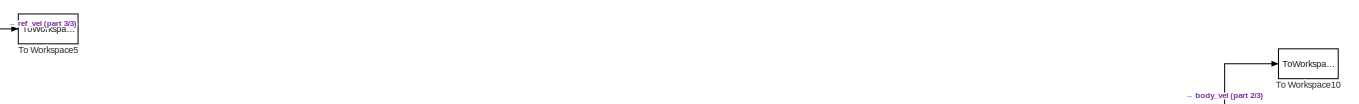
[diagram: root canvas - part 1/3, top center region]
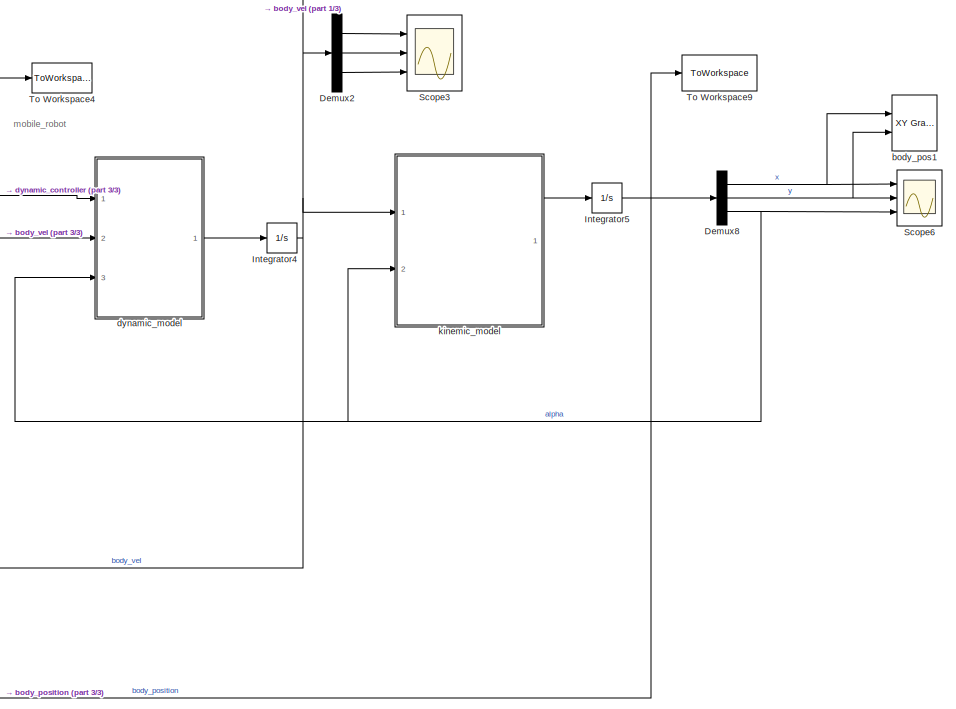
[diagram: root canvas - part 2/3, right side, full height]
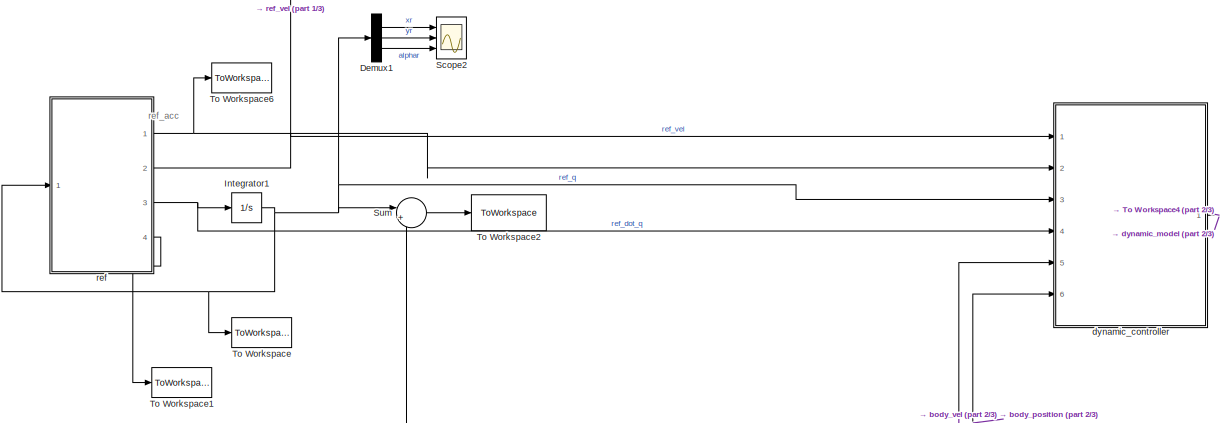
[diagram: root canvas - part 3/3, middle left region]
MODEL slx_5b17a9e69a39
KIND model
CONFIG AbsTol = auto
CONFIG EnableMultiTasking = off
CONFIG FixedStep = 0.001
CONFIG MaxStep = 0.05
CONFIG MinStep = auto
CONFIG RelTol = 1e-3
CONFIG SampleTimeConstraint = Unconstrained
CONFIG Solver = ode5
CONFIG SolverName = ode5
CONFIG StartTime = 0.0
CONFIG StopTime = 20
BLOCK [Demux] Demux1
  DisplayOption = bar
  Outputs = 3
  Ports = [1, 3]
BLOCK [Demux] Demux2
  DisplayOption = bar
  Outputs = 3
  Ports = [1, 3]
BLOCK [Demux] Demux8
  DisplayOption = bar
  Outputs = 3
  Ports = [1, 3]
BLOCK [Integrator] Integrator1
  InitialCondition = [0;0;pi/4]
  Ports = [1, 1]
BLOCK [Integrator] Integrator4
  IgnoreLimit = on
  InitialCondition = [0.1 0.1 0.1]
  Ports = [1, 1]
BLOCK [Integrator] Integrator5
  IgnoreLimit = on
  InitialCondition = [2 -2 pi/2]
  Ports = [1, 1]
BLOCK [Scope] Scope2
  NumInputPorts = 3
  Ports = [3]
  ScopeSpecificationString = Simulink.scopes.TimeScopeBlockCfg('CurrentConfiguration', extmgr.ConfigurationSet(extmgr.Configuration('Core','General UI',true),extmgr.Configuration('Core','Source UI',true),extmgr.Configuration('Sources','WiredSimulink',true,'DataLoggingVariableName','ScopeData3'),extmgr.Configuration('Visuals','Time Domain',true,'SerializedDisplays',{struct('MinYLimReal','-0.88388','MaxYLimReal','7.95495','YLab...<+2734ch>
BLOCK [Scope] Scope3
  NumInputPorts = 3
  Ports = [3]
  ScopeSpecificationString = Simulink.scopes.TimeScopeBlockCfg('CurrentConfiguration', extmgr.ConfigurationSet(extmgr.Configuration('Core','General UI',true),extmgr.Configuration('Core','Source UI',true),extmgr.Configuration('Sources','WiredSimulink',true,'DataLoggingVariableName','ScopeData1'),extmgr.Configuration('Visuals','Time Domain',true,'SerializedDisplays',{struct('MinYLimReal','0.10442','MaxYLimReal','7.84514','YLabe...<+2705ch>
BLOCK [Scope] Scope6
  NumInputPorts = 3
  Ports = [3]
  ScopeSpecificationString = Simulink.scopes.TimeScopeBlockCfg('CurrentConfiguration', extmgr.ConfigurationSet(extmgr.Configuration('Core','General UI',true),extmgr.Configuration('Core','Source UI',true),extmgr.Configuration('Sources','WiredSimulink',true,'DataLoggingVariableName','ScopeData2'),extmgr.Configuration('Visuals','Time Domain',true,'SerializedDisplays',{struct('MinYLimReal','0.10442','MaxYLimReal','7.84514','YLabe...<+2698ch>
BLOCK [Sum] Sum
  IconShape = round
  InputSameDT = off
  Inputs = |+-
  OutDataTypeStr = Inherit: Inherit via internal rule
  Ports = [2, 1]
  SaturateOnIntegerOverflow = off
BLOCK [ToWorkspace] To Workspace
  FixptAsFi = on
  MaxDataPoints = inf
  Ports = [1]
  SampleTime = -1
  Save2DSignal = 3-D array (concatenate along third dimension)
  VariableName = ref_q
BLOCK [ToWorkspace] To Workspace1
  FixptAsFi = on
  MaxDataPoints = inf
  Ports = [1]
  SampleTime = -1
  Save2DSignal = 3-D array (concatenate along third dimension)
  VariableName = ref_f
BLOCK [ToWorkspace] To Workspace10
  FixptAsFi = on
  MaxDataPoints = inf
  Ports = [1]
  SampleTime = -1
  Save2DSignal = 3-D array (concatenate along third dimension)
  VariableName = body_vel
BLOCK [ToWorkspace] To Workspace2
  FixptAsFi = on
  MaxDataPoints = inf
  Ports = [1]
  SampleTime = -1
  Save2DSignal = 3-D array (concatenate along third dimension)
  VariableName = e_pos
BLOCK [ToWorkspace] To Workspace4
  FixptAsFi = on
  MaxDataPoints = inf
  Ports = [1]
  SampleTime = -1
  Save2DSignal = 3-D array (concatenate along third dimension)
  VariableName = control_u
BLOCK [ToWorkspace] To Workspace5
  FixptAsFi = on
  MaxDataPoints = inf
  Ports = [1]
  SampleTime = -1
  Save2DSignal = 3-D array (concatenate along third dimension)
  VariableName = ref_vel
BLOCK [ToWorkspace] To Workspace6
  FixptAsFi = on
  MaxDataPoints = inf
  Ports = [1]
  SampleTime = -1
  Save2DSignal = 3-D array (concatenate along third dimension)
  VariableName = ref_acc
BLOCK [ToWorkspace] To Workspace9
  FixptAsFi = on
  MaxDataPoints = inf
  Ports = [1]
  SampleTime = -1
  Save2DSignal = 3-D array (concatenate along third dimension)
  VariableName = body_position
BLOCK [Reference] body_pos1  REF=simulink/Sinks/XY Graph
  Ports = [2]
  SourceBlock = simulink/Sinks/XY Graph
  SourceProductBaseCode = SL
  SourceProductName = Simulink
  SourceType = XY scope.
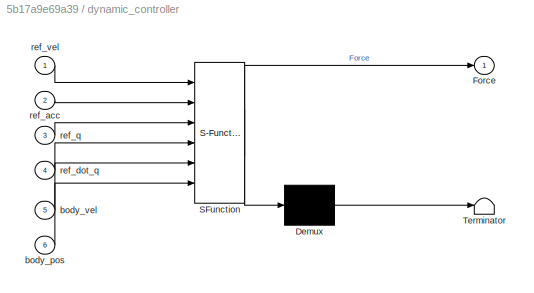
BLOCK [SubSystem] dynamic_controller
  ErrorFcn = Stateflow.Translate.translate
  PermitHierarchicalResolution = ExplicitOnly
  Ports = [6, 1]
  RequestExecContextInheritance = off
  SFBlockType = MATLAB Function
  TreatAsAtomicUnit = on
  Variant = off
BLOCK [Demux] dynamic_controller/ Demux 
  Outputs = 1
  Ports = [1, 1]
BLOCK [S-Function] dynamic_controller/ SFunction 
  EnableBusSupport = on
  FunctionName = sf_sfun
  PortCounts = [6 2]
  Ports = [6, 2]
  SFcnIsStateOwnerBlock = off
  SFunctionDeploymentMode = off
  Tag = Stateflow S-Function sim81 7
BLOCK [Terminator] dynamic_controller/ Terminator 
BLOCK [Outport] dynamic_controller/Force
  IconDisplay = Port number
BLOCK [Inport] dynamic_controller/body_pos
  IconDisplay = Port number
  Port = 6
BLOCK [Inport] dynamic_controller/body_vel
  IconDisplay = Port number
  Port = 5
BLOCK [Inport] dynamic_controller/ref_acc
  IconDisplay = Port number
  Port = 2
BLOCK [Inport] dynamic_controller/ref_dot_q
  IconDisplay = Port number
  Port = 4
BLOCK [Inport] dynamic_controller/ref_q
  IconDisplay = Port number
  Port = 3
BLOCK [Inport] dynamic_controller/ref_vel
  IconDisplay = Port number
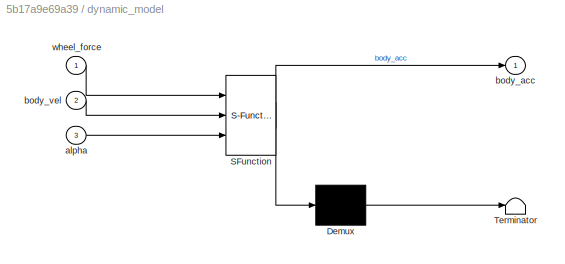
BLOCK [SubSystem] dynamic_model
  ErrorFcn = Stateflow.Translate.translate
  PermitHierarchicalResolution = ExplicitOnly
  Ports = [3, 1]
  RequestExecContextInheritance = off
  SFBlockType = MATLAB Function
  TreatAsAtomicUnit = on
  Variant = off
BLOCK [Demux] dynamic_model/ Demux 
  Outputs = 1
  Ports = [1, 1]
BLOCK [S-Function] dynamic_model/ SFunction 
  EnableBusSupport = on
  FunctionName = sf_sfun
  PortCounts = [3 2]
  Ports = [3, 2]
  SFcnIsStateOwnerBlock = off
  SFunctionDeploymentMode = off
  Tag = Stateflow S-Function sim81 6
BLOCK [Terminator] dynamic_model/ Terminator 
BLOCK [Inport] dynamic_model/alpha
  IconDisplay = Port number
  Port = 3
BLOCK [Outport] dynamic_model/body_acc
  IconDisplay = Port number
BLOCK [Inport] dynamic_model/body_vel
  IconDisplay = Port number
  Port = 2
BLOCK [Inport] dynamic_model/wheel_force
  IconDisplay = Port number
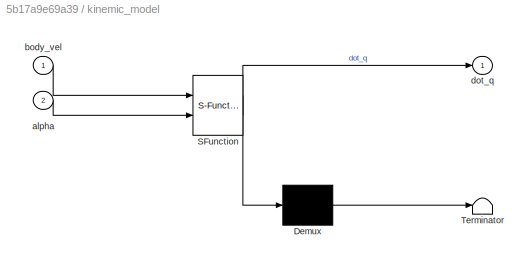
BLOCK [SubSystem] kinemic_model
  ErrorFcn = Stateflow.Translate.translate
  PermitHierarchicalResolution = ExplicitOnly
  Ports = [2, 1]
  RequestExecContextInheritance = off
  SFBlockType = MATLAB Function
  TreatAsAtomicUnit = on
  Variant = off
BLOCK [Demux] kinemic_model/ Demux 
  Outputs = 1
  Ports = [1, 1]
BLOCK [S-Function] kinemic_model/ SFunction 
  EnableBusSupport = on
  FunctionName = sf_sfun
  PortCounts = [2 2]
  Ports = [2, 2]
  SFcnIsStateOwnerBlock = off
  SFunctionDeploymentMode = off
  Tag = Stateflow S-Function sim81 8
BLOCK [Terminator] kinemic_model/ Terminator 
BLOCK [Inport] kinemic_model/alpha
  IconDisplay = Port number
  Port = 2
BLOCK [Inport] kinemic_model/body_vel
  IconDisplay = Port number
BLOCK [Outport] kinemic_model/dot_q
  IconDisplay = Port number
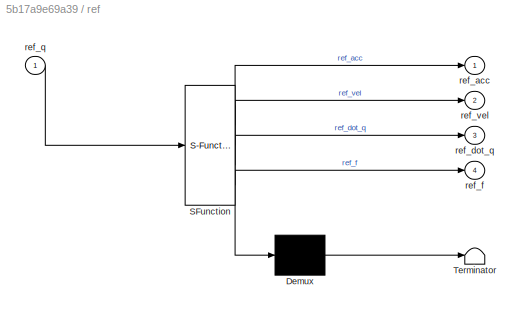
BLOCK [SubSystem] ref
  ErrorFcn = Stateflow.Translate.translate
  PermitHierarchicalResolution = ExplicitOnly
  Ports = [1, 4]
  RequestExecContextInheritance = off
  SFBlockType = MATLAB Function
  TreatAsAtomicUnit = on
  Variant = off
BLOCK [Demux] ref/ Demux 
  Outputs = 1
  Ports = [1, 1]
BLOCK [S-Function] ref/ SFunction 
  EnableBusSupport = on
  FunctionName = sf_sfun
  PortCounts = [1 5]
  Ports = [1, 5]
  SFcnIsStateOwnerBlock = off
  SFunctionDeploymentMode = off
  Tag = Stateflow S-Function sim81 4
BLOCK [Terminator] ref/ Terminator 
BLOCK [Outport] ref/ref_acc
  IconDisplay = Port number
BLOCK [Outport] ref/ref_dot_q
  IconDisplay = Port number
  Port = 3
BLOCK [Outport] ref/ref_f
  IconDisplay = Port number
  Port = 4
BLOCK [Inport] ref/ref_q
  IconDisplay = Port number
BLOCK [Outport] ref/ref_vel
  IconDisplay = Port number
  Port = 2
ANNOTATION (root): mobile_robot
ANNOTATION (root): ref_acc
LINE Demux1:1 -> Scope2:1
LINE Demux1:2 -> Scope2:2
LINE Demux1:3 -> Scope2:3
LINE Demux2:1 -> Scope3:1
LINE Demux2:2 -> Scope3:2
LINE Demux2:3 -> Scope3:3
NET Demux8:1 -> Scope6:1, body_pos1:1
NET Demux8:2 -> Scope6:2, body_pos1:2
NET Demux8:3 -> Scope6:3, dynamic_model:3, kinemic_model:2
NET Integrator1:1 -> Demux1:1, Sum:1, To Workspace:1, dynamic_controller:3, ref:1
NET Integrator4:1 -> Demux2:1, To Workspace10:1, dynamic_controller:5, dynamic_model:2, kinemic_model:1
NET Integrator5:1 -> Demux8:1, Sum:2, To Workspace9:1, dynamic_controller:6
LINE Sum:1 -> To Workspace2:1
NET dynamic_controller:1 -> To Workspace4:1, dynamic_model:1
LINE dynamic_model:1 -> Integrator4:1
LINE kinemic_model:1 -> Integrator5:1
NET ref:1 -> To Workspace6:1, dynamic_controller:2
NET ref:2 -> To Workspace5:1, dynamic_controller:1
NET ref:3 -> Integrator1:1, dynamic_controller:4
LINE ref:4 -> To Workspace1:1
note: NET lines group one-source signal fan-out (src -> all destinations, sorted); 1:1 wires keep LINE
CHART ref states=1 transitions=1
  STATE_LABEL 'eML_blk_kernel()'
  STATE_LABEL 'SCRIPT:\nfunction [ref_acc,ref_vel, ref_dot_q,ref_f]  = fcn(ref_q)\nxr=ref_q(1);\nyr=ref_q(2);\nalphar=ref_q(3);\n\naxro=0;\nayro=0;\naomegaro=0;\n\ndot_vxr=axro;\ndot_vyr=ayro;\ndot_omegar=aomegaro;\nref_acc=[dot_vxr;dot_vyr;dot_omegar]; %车体坐标系下 车的参考加速度\n\nvxr=1;\nvyr=0;\nomegar=0.5;\nref_vel=[vxr;vyr;omegar]; %车体坐标系下的车的参考速度\n\ndotx = vxr*cos(alphar) - vyr*sin(alphar);\ndoty = vxr*sin(alphar) + vyr*sin(alphar);\ndotal...<+81ch>'
CHART dynamic_model states=1 transitions=1
  STATE_LABEL 'eML_blk_kernel()'
  STATE_LABEL 'SCRIPT:\nfunction body_acc = fcn(wheel_force,body_vel,alpha)\n%车辆参数\nd = 0.18;\nl = 0.16;\n\nm = 24;\nIz = 11.89;\n\nc_wheel = 513.6 ; %侧偏刚度\ngravity=[0 0 9.81];\n\n\n\nFX1 = wheel_force(1);    % 将得到的车轮挂钩牵引力分配\nFX2 = wheel_force(2);\n\nvx=body_vel(1);\nvy=body_vel(2);\nomega=body_vel(3);\n\nbeta1=atan( ( vy+l*omega )/( vx+0.000000000000001 ));\nbeta2=atan( ( vy+l*omega )/( vx+0.000000000000001 ));\n\nFY1=-c_wheel*beta1;\n...<+512ch>'
CHART dynamic_controller states=1 transitions=1
  STATE_LABEL 'eML_blk_kernel()'
  STATE_LABEL 'SCRIPT:\nfunction Force = SMC_controller(ref_vel,ref_acc,ref_q, ref_dot_q,body_vel,body_pos)\n%% 参数测试\n% ref_vel=[1; 0; 0.5];\n% ref_acc=[0 ;0;0];\n% ref_q=[0 ;0;pi/4];\n% ref_dot_q=[0.5;0.5;0.5];\n% body_vel=[0.01 ; 0 ;0];\n% body_pos=[2; 2; pi/2];\n\n%%\nm = 24;\nIz = 11.89;     l = 0.16;   d = 0.18;\nc=[1 0 0; 0 1 0; 0 0 10];    c_wheel = 513.6 ; %侧偏刚度\n\nvx = body_vel(1);\nvy = body_vel(2);\nomega = body_vel(3...<+1652ch>'
CHART kinemic_model states=1 transitions=1
  STATE_LABEL 'eML_blk_kernel()'
  STATE_LABEL 'SCRIPT:\n% body_vel传进来的是【v w】\n\nfunction dot_q   = fcn(body_vel,alpha)\n\nwheel_radius = 0.330/2;\nd = 0.18;\nl = 0.16;\n\nR = [cos(alpha) -sin(alpha) 0;\n     sin(alpha) cos(alpha) 0;\n     0 0 1];\n% R_w2v =(wheel_radius).*[1/2     1/2;\n%                             0           0;\n%                         -1/(2*d)  1/(2*d)];\n%                     \n% max=1/wheel_radius;\n% for i=1:size(wheel_omega,2)\n%     ...<+390ch>'
